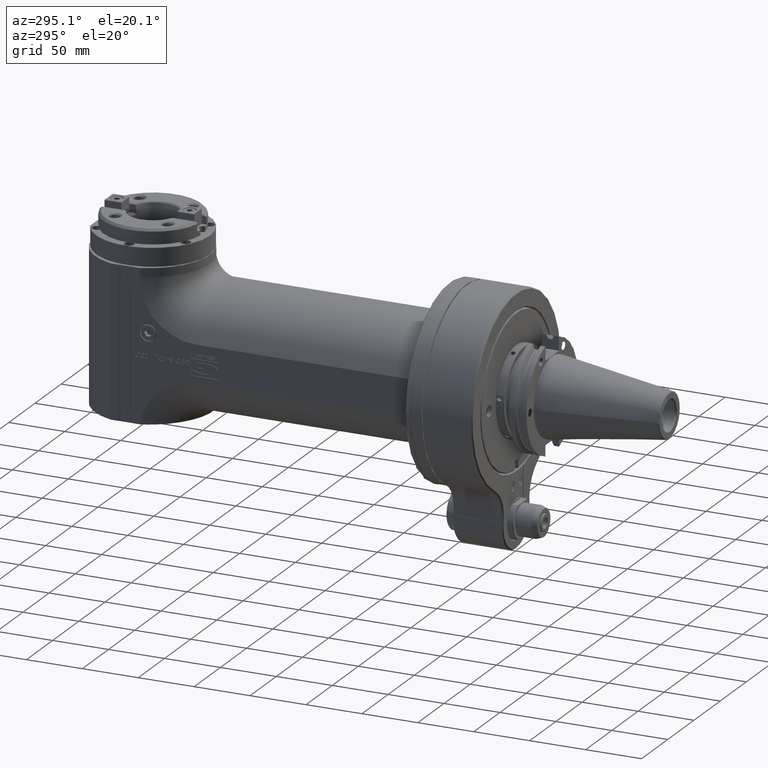
[diagram: clean part render]
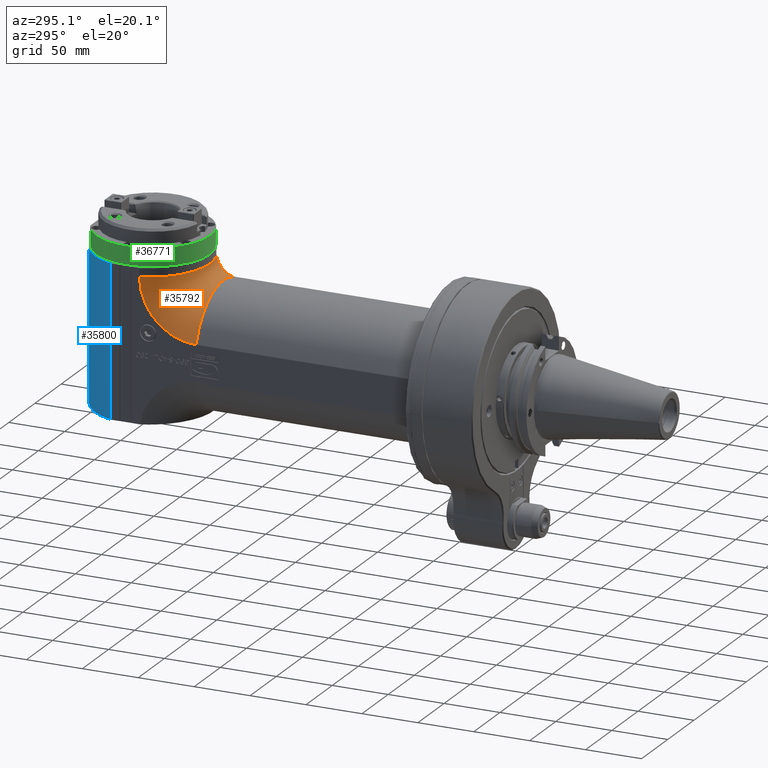
[diagram: same view with three faces highlighted in distinct colors, each labeled with its STEP entity id]
A machine part, auxiliary view with three faces highlighted in distinct colors.
Their STEP definitions:

[orange] entity #35792 — the highlighted toroidal blend (fillet) surface has major radius 67 mm and minor (blend) radius 55 mm.
#8221=TOROIDAL_SURFACE('',#38077,2.63779527559055,2.16535433070866);
#8586=FACE_OUTER_BOUND('',#10751,.T.);
#10751=EDGE_LOOP('',(#24274,#24275,#24276,#24277));
#12994=CIRCLE('',#37935,1.99237809800157);
#13000=CIRCLE('',#37952,1.99237809800197);
#13068=CIRCLE('',#38076,2.16535433070866);
#13069=CIRCLE('',#38078,2.16535433070866);
#14553=VERTEX_POINT('',#52572);
#14554=VERTEX_POINT('',#52574);
#14890=VERTEX_POINT('',#53302);
#14891=VERTEX_POINT('',#53304);
#18150=EDGE_CURVE('',#14554,#14553,#12994,.T.);
#18499=EDGE_CURVE('',#14890,#14891,#13000,.T.);
#18624=EDGE_CURVE('',#14891,#14553,#13068,.T.);
#18625=EDGE_CURVE('',#14890,#14554,#13069,.T.);
#24274=ORIENTED_EDGE('',*,*,#18625,.T.);
#24275=ORIENTED_EDGE('',*,*,#18150,.T.);
#24276=ORIENTED_EDGE('',*,*,#18624,.F.);
#24277=ORIENTED_EDGE('',*,*,#18499,.F.);
#35792=ADVANCED_FACE('',(#8586),#8221,.T.);
#37935=AXIS2_PLACEMENT_3D('',#52575,#41755,#41756);
#37952=AXIS2_PLACEMENT_3D('',#53305,#42131,#42132);
#38076=AXIS2_PLACEMENT_3D('',#54330,#42424,#42425);
#38077=AXIS2_PLACEMENT_3D('',#54331,#42426,#42427);
#38078=AXIS2_PLACEMENT_3D('',#54332,#42428,#42429);
#41755=DIRECTION('center_axis',(-1.,0.,0.));
#41756=DIRECTION('ref_axis',(0.,1.,2.583464815692E-14));
#42131=DIRECTION('center_axis',(-1.,0.,0.));
#42132=DIRECTION('ref_axis',(0.,1.,-1.291732407846E-14));
#42424=DIRECTION('center_axis',(0.,-1.,0.));
#42425=DIRECTION('ref_axis',(0.954545454545451,0.,0.298065387468285));
#42426=DIRECTION('center_axis',(-1.,0.,0.));
#42427=DIRECTION('ref_axis',(0.,0.,1.));
#42428=DIRECTION('center_axis',(0.,0.,-1.));
#42429=DIRECTION('ref_axis',(0.954545454545451,-0.298065387468285,0.));
#52572=CARTESIAN_POINT('',(-2.06692913385827,9.84251968503937,0.645417177588976));
#52574=CARTESIAN_POINT('',(-2.06692913385827,11.8348977830394,2.63779527559055));
#52575=CARTESIAN_POINT('Origin',(-2.06692913385827,9.84251968503937,2.63779527559055));
#53302=CARTESIAN_POINT('',(2.06692913385827,11.8348977830394,2.63779527559055));
#53304=CARTESIAN_POINT('',(2.06692913385827,9.84251968503937,0.645417177588976));
#53305=CARTESIAN_POINT('Origin',(2.06692913385827,9.84251968503937,2.63779527559055));
#54330=CARTESIAN_POINT('Origin',(6.02680511391339E-16,9.84251968503937,
0.));
#54331=CARTESIAN_POINT('Origin',(6.02680511391339E-16,9.84251968503937,
2.63779527559055));
#54332=CARTESIAN_POINT('Origin',(7.64198888444488E-16,12.4803149606299,
2.63779527559055));

[blue] entity #35800 — the highlighted cylindrical surface (partial cylindrical patch) has radius 55 mm, axis along (-0, 0, 1).
#1529=LINE('',#53269,#4819);
#1600=LINE('',#54370,#4890);
#4819=VECTOR('',#42096,5.30314960629921);
#4890=VECTOR('',#42471,5.30314960629921);
#7804=CYLINDRICAL_SURFACE('',#38095,2.16535433070866);
#8594=FACE_OUTER_BOUND('',#10766,.T.);
#10766=EDGE_LOOP('',(#24327,#24328,#24329,#24330));
#12997=CIRCLE('',#37940,2.16535433070866);
#13071=CIRCLE('',#38082,2.16535433070866);
#14865=VERTEX_POINT('',#53200);
#14878=VERTEX_POINT('',#53260);
#14881=VERTEX_POINT('',#53268);
#14972=VERTEX_POINT('',#54336);
#18478=EDGE_CURVE('',#14865,#14878,#12997,.T.);
#18481=EDGE_CURVE('',#14865,#14881,#1529,.T.);
#18627=EDGE_CURVE('',#14881,#14972,#13071,.T.);
#18644=EDGE_CURVE('',#14878,#14972,#1600,.T.);
#24327=ORIENTED_EDGE('',*,*,#18481,.F.);
#24328=ORIENTED_EDGE('',*,*,#18478,.T.);
#24329=ORIENTED_EDGE('',*,*,#18644,.T.);
#24330=ORIENTED_EDGE('',*,*,#18627,.F.);
#35800=ADVANCED_FACE('',(#8594),#7804,.T.);
#37940=AXIS2_PLACEMENT_3D('',#53262,#42089,#42090);
#38082=AXIS2_PLACEMENT_3D('',#54337,#42436,#42437);
#38095=AXIS2_PLACEMENT_3D('',#54371,#42472,#42473);
#42089=DIRECTION('center_axis',(0.,0.,1.));
#42090=DIRECTION('ref_axis',(-0.325754052130319,0.945454545454554,0.));
#42096=DIRECTION('',(0.,0.,1.));
#42436=DIRECTION('center_axis',(0.,0.,1.));
#42437=DIRECTION('ref_axis',(-0.325754052130319,0.945454545454554,0.));
#42471=DIRECTION('',(0.,0.,1.));
#42472=DIRECTION('center_axis',(0.,0.,1.));
#42473=DIRECTION('ref_axis',(1.,0.,0.));
#53200=CARTESIAN_POINT('',(-0.705372947526378,14.251968503937,-2.36220472440945));
#53260=CARTESIAN_POINT('',(-2.06692913385827,12.8501415870394,-2.36220472440945));
#53262=CARTESIAN_POINT('Origin',(7.47323834125197E-16,12.2047244094488,
-2.36220472440945));
#53268=CARTESIAN_POINT('',(-0.705372947526378,14.251968503937,2.94094488188976));
#53269=CARTESIAN_POINT('',(-0.705372947526378,14.251968503937,-2.36220472440945));
#54336=CARTESIAN_POINT('',(-2.06692913385827,12.8501415870394,2.94094488188976));
#54337=CARTESIAN_POINT('Origin',(7.47323834125197E-16,12.2047244094488,
2.94094488188976));
#54370=CARTESIAN_POINT('',(-2.06692913385827,12.8501415870394,-2.36220472440945));
#54371=CARTESIAN_POINT('Origin',(7.47323834125197E-16,12.2047244094488,
-3.1496062992126));

[green] entity #36771 — the highlighted cylindrical surface (partial cylindrical patch) has radius 51 mm, axis along (-0, 0, 1).
#3283=LINE('',#61536,#6573);
#3289=LINE('',#61547,#6579);
#6573=VECTOR('',#46816,0.633858135444095);
#6579=VECTOR('',#46826,0.633858135444095);
#7911=CYLINDRICAL_SURFACE('',#39428,2.00787401574803);
#9565=FACE_OUTER_BOUND('',#11818,.T.);
#11818=EDGE_LOOP('',(#29180,#29181,#29182,#29183));
#13440=CIRCLE('',#39424,2.00787401574803);
#13441=CIRCLE('',#39429,2.00787401574803);
#16374=VERTEX_POINT('',#61525);
#16375=VERTEX_POINT('',#61529);
#16376=VERTEX_POINT('',#61535);
#16379=VERTEX_POINT('',#61545);
#20907=EDGE_CURVE('',#16374,#16375,#13440,.T.);
#20908=EDGE_CURVE('',#16376,#16374,#3283,.T.);
#20914=EDGE_CURVE('',#16375,#16379,#3289,.T.);
#20915=EDGE_CURVE('',#16379,#16376,#13441,.T.);
#29180=ORIENTED_EDGE('',*,*,#20908,.T.);
#29181=ORIENTED_EDGE('',*,*,#20907,.T.);
#29182=ORIENTED_EDGE('',*,*,#20914,.T.);
#29183=ORIENTED_EDGE('',*,*,#20915,.T.);
#36771=ADVANCED_FACE('',(#9565),#7911,.T.);
#39424=AXIS2_PLACEMENT_3D('',#61533,#46812,#46813);
#39428=AXIS2_PLACEMENT_3D('',#61548,#46827,#46828);
#39429=AXIS2_PLACEMENT_3D('',#61549,#46829,#46830);
#46812=DIRECTION('center_axis',(0.,0.,1.));
#46813=DIRECTION('ref_axis',(-0.388947686148899,0.921259842519697,0.));
#46816=DIRECTION('',(-6.436812399784E-13,1.525239880264E-12,-1.));
#46826=DIRECTION('',(-6.416952505508E-13,-1.521709232393E-12,1.));
#46827=DIRECTION('center_axis',(0.,0.,1.));
#46828=DIRECTION('ref_axis',(0.,-1.,0.));
#46829=DIRECTION('center_axis',(0.,0.,-1.));
#46830=DIRECTION('ref_axis',(0.388947686148899,0.921259842519697,0.));
#61525=CARTESIAN_POINT('',(-0.780957952503937,14.1726083452165,2.96063011633189));
#61529=CARTESIAN_POINT('',(0.780957952503937,14.1726083452165,2.96063011633189));
#61533=CARTESIAN_POINT('Origin',(-9.18065539248425E-15,12.3228346456693,
2.96063011633189));
#61535=CARTESIAN_POINT('',(-0.780957952501946,14.1726083452171,3.59448822039132));
#61536=CARTESIAN_POINT('',(-0.78095795250315,14.1726083452165,3.59448825177559));
#61545=CARTESIAN_POINT('',(0.780957952503258,14.1726083452164,3.59448823084406));
#61547=CARTESIAN_POINT('',(0.780957952503937,14.1726083452165,2.96063011633189));
#61548=CARTESIAN_POINT('Origin',(0.,12.3228346456693,2.92027559055118));
#61549=CARTESIAN_POINT('Origin',(0.,12.3228346456693,3.59448818897638));